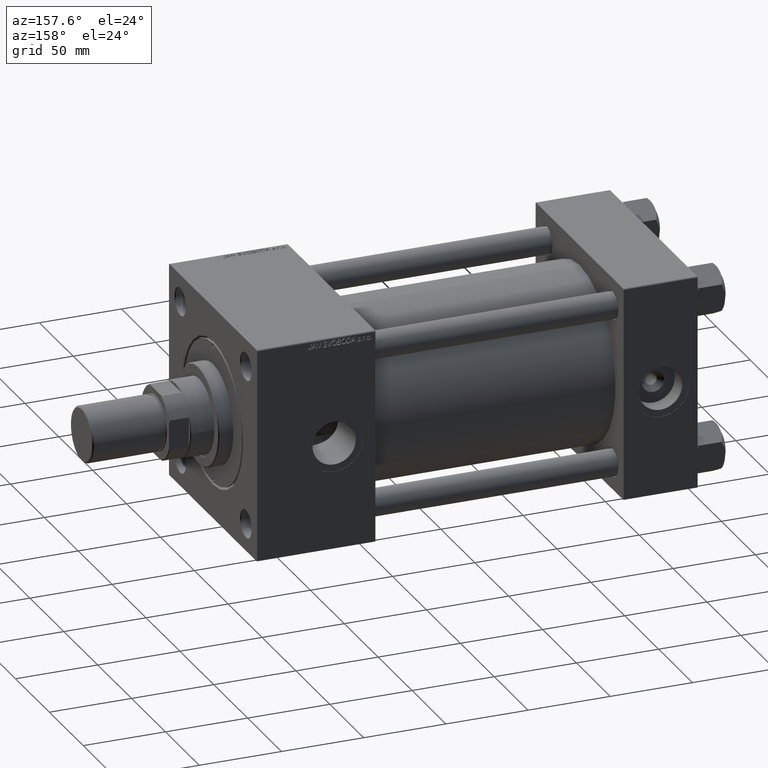
[diagram: clean part render]
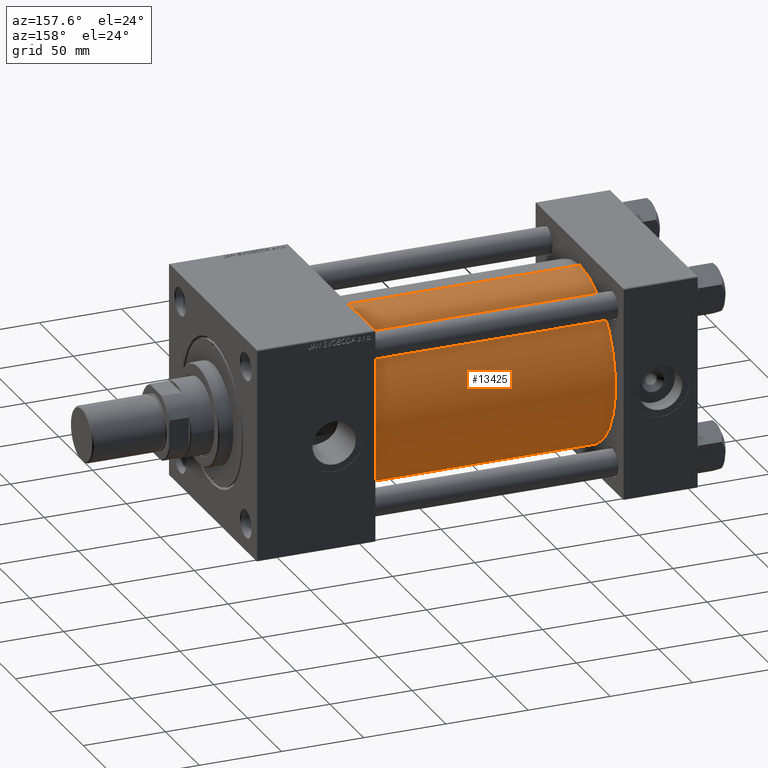
[diagram: same view with one face highlighted and labeled with its STEP entity id]
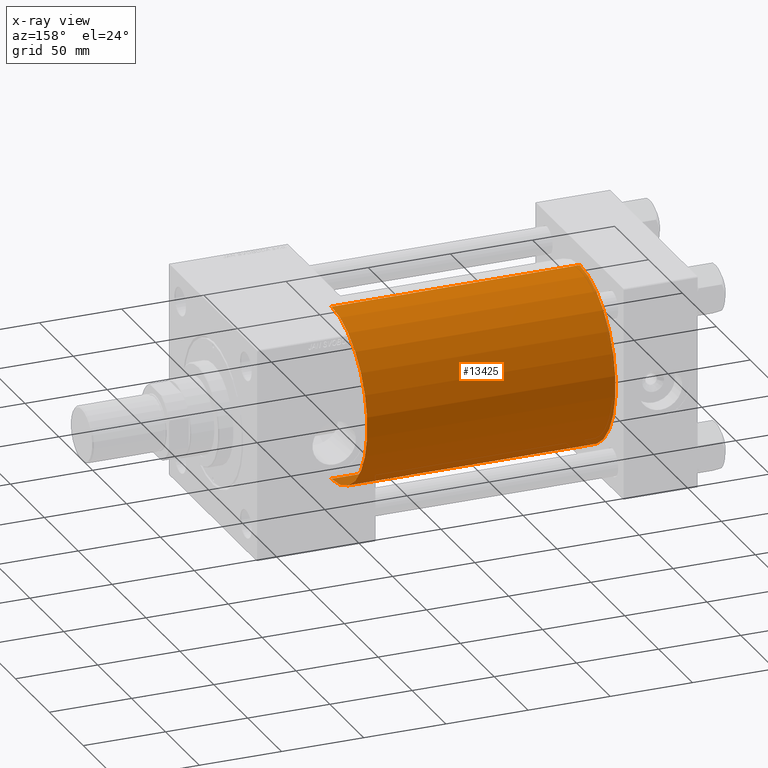
[diagram: x-ray of the same camera — body ghosted, the highlighted face saturated]
A machine part, auxiliary view. The second image highlights one B-rep face of the part: STEP entity #13425.
The next image is the same camera in x-ray: the body ghosted, the highlighted face saturated — about 0% of this face is hidden behind the body in this view.
In plain terms, the highlighted cylindrical surface (partial cylindrical patch) has radius 53 mm, axis along (-1, -0, -0).
Its self-contained STEP definition (entity closure, byte-faithful):
#1434 = CARTESIAN_POINT ( 'NONE',  ( 196.0000000000000000, 3.888542821515762466E-15, -53.00000000000000711 ) ) ;
#1473 = EDGE_LOOP ( 'NONE', ( #23328, #42092, #48608, #48865 ) ) ;
#1683 = DIRECTION ( 'NONE',  ( -1.000000000000000000, -0.000000000000000000, -0.000000000000000000 ) ) ;
#1973 = DIRECTION ( 'NONE',  ( 0.000000000000000000, 0.000000000000000000, -1.000000000000000000 ) ) ;
#2898 = EDGE_CURVE ( 'NONE', #49899, #31240, #33308, .T. ) ;
#4325 = VERTEX_POINT ( 'NONE', #25545 ) ;
#4770 = DIRECTION ( 'NONE',  ( 0.000000000000000000, 0.000000000000000000, 1.000000000000000000 ) ) ;
#5243 = DIRECTION ( 'NONE',  ( 0.000000000000000000, 0.000000000000000000, 1.000000000000000000 ) ) ;
#6308 = EDGE_CURVE ( 'NONE', #46851, #4325, #30343, .T. ) ;
#8658 = CYLINDRICAL_SURFACE ( 'NONE', #20809, 53.00000000000000711 ) ;
#12252 = CARTESIAN_POINT ( 'NONE',  ( 44.99999999999998579, -2.602085213965210642E-15, 0.000000000000000000 ) ) ;
#13425 = ADVANCED_FACE ( 'NONE', ( #48049 ), #8658, .T. ) ;
#20036 = LINE ( 'NONE', #39759, #45790 ) ;
#20318 = CARTESIAN_POINT ( 'NONE',  ( 196.0000000000000000, -2.602085213965210642E-15, 0.000000000000000000 ) ) ;
#20809 = AXIS2_PLACEMENT_3D ( 'NONE', #20318, #40041, #4770 ) ;
#21117 = LINE ( 'NONE', #1434, #32751 ) ;
#22023 = CARTESIAN_POINT ( 'NONE',  ( 196.0000000000000000, -2.602085213965210642E-15, 53.00000000000000711 ) ) ;
#23328 = ORIENTED_EDGE ( 'NONE', *, *, #2898, .F. ) ;
#25545 = CARTESIAN_POINT ( 'NONE',  ( 44.99999999999998579, -2.602085213965210642E-15, 53.00000000000000711 ) ) ;
#26091 = CARTESIAN_POINT ( 'NONE',  ( 196.0000000000000000, 3.888542821515762466E-15, -53.00000000000000711 ) ) ;
#27828 = DIRECTION ( 'NONE',  ( -1.000000000000000000, -0.000000000000000000, -0.000000000000000000 ) ) ;
#29084 = DIRECTION ( 'NONE',  ( 1.000000000000000000, -0.000000000000000000, 0.000000000000000000 ) ) ;
#30343 = CIRCLE ( 'NONE', #41117, 53.00000000000000711 ) ;
#31240 = VERTEX_POINT ( 'NONE', #22023 ) ;
#32751 = VECTOR ( 'NONE', #1683, 1000.000000000000000 ) ;
#33308 = CIRCLE ( 'NONE', #36647, 53.00000000000000711 ) ;
#36647 = AXIS2_PLACEMENT_3D ( 'NONE', #36711, #41369, #1973 ) ;
#36711 = CARTESIAN_POINT ( 'NONE',  ( 196.0000000000000000, -2.602085213965210642E-15, 0.000000000000000000 ) ) ;
#37260 = CARTESIAN_POINT ( 'NONE',  ( 44.99999999999998579, 3.888542821515762466E-15, -53.00000000000000711 ) ) ;
#39759 = CARTESIAN_POINT ( 'NONE',  ( 196.0000000000000000, -2.602085213965210642E-15, 53.00000000000000711 ) ) ;
#40041 = DIRECTION ( 'NONE',  ( -1.000000000000000000, -0.000000000000000000, -0.000000000000000000 ) ) ;
#41117 = AXIS2_PLACEMENT_3D ( 'NONE', #12252, #29084, #5243 ) ;
#41369 = DIRECTION ( 'NONE',  ( 1.000000000000000000, 0.000000000000000000, 0.000000000000000000 ) ) ;
#42092 = ORIENTED_EDGE ( 'NONE', *, *, #50307, .T. ) ;
#43820 = EDGE_CURVE ( 'NONE', #31240, #4325, #20036, .T. ) ;
#45790 = VECTOR ( 'NONE', #27828, 1000.000000000000000 ) ;
#46851 = VERTEX_POINT ( 'NONE', #37260 ) ;
#48049 = FACE_OUTER_BOUND ( 'NONE', #1473, .T. ) ;
#48608 = ORIENTED_EDGE ( 'NONE', *, *, #6308, .T. ) ;
#48865 = ORIENTED_EDGE ( 'NONE', *, *, #43820, .F. ) ;
#49899 = VERTEX_POINT ( 'NONE', #26091 ) ;
#50307 = EDGE_CURVE ( 'NONE', #49899, #46851, #21117, .T. ) ;